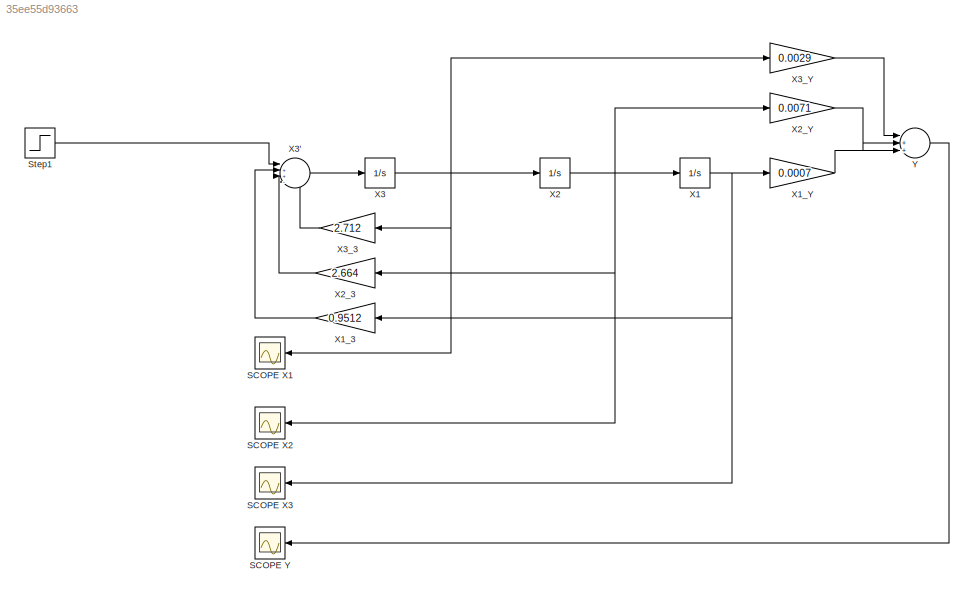
MODEL slx_35ee55d93663
KIND model
CONFIG AbsTol = auto
CONFIG EnableMultiTasking = off
CONFIG FixedStep = auto
CONFIG MaxStep = auto
CONFIG MinStep = auto
CONFIG RelTol = 1e-3
CONFIG SampleTimeConstraint = Unconstrained
CONFIG SolverName = VariableStepAuto
CONFIG StartTime = 0.0
CONFIG StopTime = 10.0
BLOCK [Scope] SCOPE X1
  Floating = off
  NameLocation = top
  NumInputPorts = 1
  Ports = [1]
  ScopeSpecificationString = Simulink.scopes.TimeScopeBlockCfg('CurrentConfiguration', extmgr.ConfigurationSet(extmgr.Configuration('Core','General UI',true),extmgr.Configuration('Core','Source UI',true),extmgr.Configuration('Sources','WiredSimulink',true,'DataLoggingVariableName','ScopeData1'),extmgr.Configuration('Visuals','Time Domain',true,'SerializedDisplays',{struct('MinYLimReal','-24.27296','MaxYLimReal','218.4566','YL...<+1375ch>
BLOCK [Scope] SCOPE X2
  Floating = off
  NameLocation = top
  NumInputPorts = 1
  Ports = [1]
  ScopeSpecificationString = Simulink.scopes.TimeScopeBlockCfg('CurrentConfiguration', extmgr.ConfigurationSet(extmgr.Configuration('Core','General UI',true),extmgr.Configuration('Core','Source UI',true),extmgr.Configuration('Sources','WiredSimulink',true,'DataLoggingVariableName','ScopeData2'),extmgr.Configuration('Visuals','Time Domain',true,'SerializedDisplays',{struct('MinYLimReal','-40.79347','MaxYLimReal','367.05158','Y...<+1380ch>
BLOCK [Scope] SCOPE X3
  Floating = off
  NameLocation = top
  NumInputPorts = 1
  Ports = [1]
  ScopeSpecificationString = Simulink.scopes.TimeScopeBlockCfg('CurrentConfiguration', extmgr.ConfigurationSet(extmgr.Configuration('Core','General UI',true),extmgr.Configuration('Core','Source UI',true),extmgr.Configuration('Sources','WiredSimulink',true,'DataLoggingVariableName','ScopeData3'),extmgr.Configuration('Visuals','Time Domain',true,'SerializedDisplays',{struct('MinYLimReal','-402550906.50446','MaxYLimReal','447278...<+1419ch>
BLOCK [Scope] SCOPE Y
  Floating = off
  NameLocation = top
  NumInputPorts = 1
  Ports = [1]
  ScopeSpecificationString = Simulink.scopes.TimeScopeBlockCfg('CurrentConfiguration', extmgr.ConfigurationSet(extmgr.Configuration('Core','General UI',true),extmgr.Configuration('Core','Source UI',true),extmgr.Configuration('Sources','WiredSimulink',true),extmgr.Configuration('Visuals','Time Domain',true,'SerializedDisplays',{struct('MinYLimReal','-14163000.90241','MaxYLimReal','1573666.76693','YLabelReal','','MinYLimMag',' ...<+1373ch>
BLOCK [Step] Step1
  SampleTime = 0
BLOCK [Integrator] X1
  Ports = [1, 1]
BLOCK [Gain] X1_3
  Gain = 0.9512
BLOCK [Gain] X1_Y
  Gain = 0.0007
BLOCK [Integrator] X2
  Ports = [1, 1]
BLOCK [Gain] X2_3
  Gain = 2.664
BLOCK [Gain] X2_Y
  Gain = 0.0071
BLOCK [Integrator] X3
  Ports = [1, 1]
BLOCK [Sum] X3'
  Inputs = |++-+
  NameLocation = top
  Ports = [4, 1]
BLOCK [Gain] X3_3
  Gain = 2.712
BLOCK [Gain] X3_Y
  Gain = 0.0029
BLOCK [Sum] Y
  Inputs = |+++
  NameLocation = top
  Ports = [3, 1]
LINE Step1:1 -> X3':1
NET X1:1 -> SCOPE X3:1, X1_3:1, X1_Y:1
LINE X1_3:1 -> X3':2
LINE X1_Y:1 -> Y:3
NET X2:1 -> SCOPE X2:1, X1:1, X2_3:1, X2_Y:1
LINE X2_3:1 -> X3':3
LINE X2_Y:1 -> Y:2
LINE X3':1 -> X3:1
NET X3:1 -> SCOPE X1:1, X2:1, X3_3:1, X3_Y:1
LINE X3_3:1 -> X3':4
LINE X3_Y:1 -> Y:1
LINE Y:1 -> SCOPE Y:1
note: NET lines group one-source signal fan-out (src -> all destinations, sorted); 1:1 wires keep LINE
